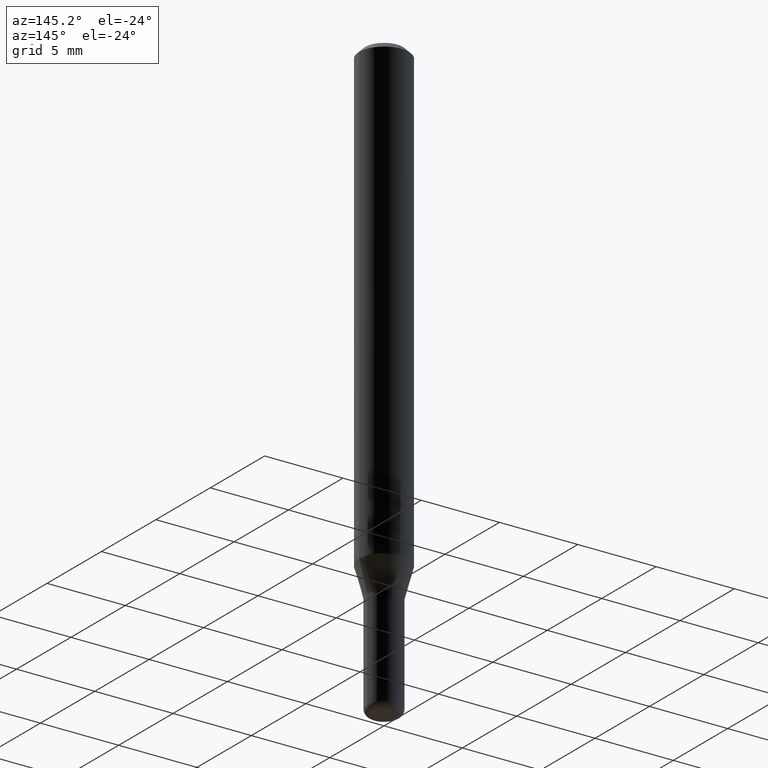
[diagram: clean part render]
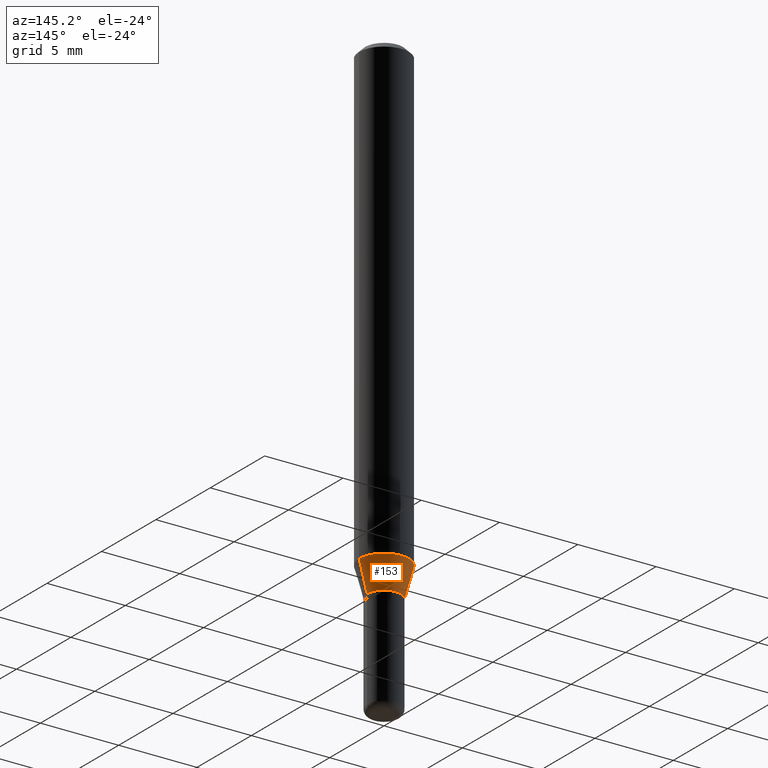
[diagram: same view with one face highlighted and labeled with its STEP entity id]
A machine part, auxiliary view. The second image highlights one B-rep face of the part: STEP entity #153.
In plain terms, the highlighted conical surface has half-angle 15 deg.
Its self-contained STEP definition (entity closure, byte-faithful):
#13 = CARTESIAN_POINT ( 'NONE',  ( 0.04249999999999997530, -4.608755367272951648E-15, -1.235000000000000098 ) ) ;
#17 = EDGE_LOOP ( 'NONE', ( #265, #426, #82, #414 ) ) ;
#18 = EDGE_CURVE ( 'NONE', #262, #90, #392, .T. ) ;
#26 = VERTEX_POINT ( 'NONE', #13 ) ;
#34 = DIRECTION ( 'NONE',  ( 0.2588190451025209060, 1.565188264969625123E-15, 0.9659258262890682012 ) ) ;
#40 = CIRCLE ( 'NONE', #452, 0.04249999999999997530 ) ;
#82 = ORIENTED_EDGE ( 'NONE', *, *, #18, .F. ) ;
#84 = DIRECTION ( 'NONE',  ( -0.2588190451025209060, 5.211531920934547097E-15, 0.9659258262890682012 ) ) ;
#90 = VERTEX_POINT ( 'NONE', #504 ) ;
#93 = DIRECTION ( 'NONE',  ( -2.445468806185136597E-29, 3.491481338843145583E-15, 1.000000000000000000 ) ) ;
#100 = DIRECTION ( 'NONE',  ( -2.445468806185136597E-29, 3.491481338843145583E-15, 1.000000000000000000 ) ) ;
#130 = CARTESIAN_POINT ( 'NONE',  ( 0.04249999999999997530, -4.608755367272951648E-15, -1.235000000000000098 ) ) ;
#153 = ADVANCED_FACE ( 'NONE', ( #468 ), #361, .T. ) ;
#173 = DIRECTION ( 'NONE',  ( 1.000000000000000000, -6.982962677686269077E-15, 0.000000000000000000 ) ) ;
#202 = CARTESIAN_POINT ( 'NONE',  ( -0.04249999999999997530, -4.009998790773243334E-15, -1.235000000000000098 ) ) ;
#216 = DIRECTION ( 'NONE',  ( 1.000000000000000000, -6.982962677686262766E-15, 0.000000000000000000 ) ) ;
#232 = DIRECTION ( 'NONE',  ( -2.445468806185136597E-29, 3.491481338843145583E-15, 1.000000000000000000 ) ) ;
#236 = EDGE_CURVE ( 'NONE', #373, #90, #362, .T. ) ;
#262 = VERTEX_POINT ( 'NONE', #295 ) ;
#265 = ORIENTED_EDGE ( 'NONE', *, *, #300, .T. ) ;
#291 = CARTESIAN_POINT ( 'NONE',  ( 2.837621698978489098E-29, -4.051371738466460595E-15, -1.160358983848622572 ) ) ;
#293 = VECTOR ( 'NONE', #84, 39.37007874015748143 ) ;
#295 = CARTESIAN_POINT ( 'NONE',  ( 0.06250000000000000000, -4.487806905821851475E-15, -1.160358983848622572 ) ) ;
#300 = EDGE_CURVE ( 'NONE', #26, #373, #40, .T. ) ;
#308 = VECTOR ( 'NONE', #34, 39.37007874015748143 ) ;
#336 = LINE ( 'NONE', #130, #308 ) ;
#347 = CARTESIAN_POINT ( 'NONE',  ( 3.020153975638643988E-29, -4.311979453471284998E-15, -1.235000000000000098 ) ) ;
#354 = AXIS2_PLACEMENT_3D ( 'NONE', #291, #93, #216 ) ;
#361 = CONICAL_SURFACE ( 'NONE', #408, 0.04249999999999997530, 0.2617993877991495744 ) ;
#362 = LINE ( 'NONE', #202, #293 ) ;
#373 = VERTEX_POINT ( 'NONE', #405 ) ;
#387 = DIRECTION ( 'NONE',  ( 1.000000000000000000, -6.982962677686269077E-15, 0.000000000000000000 ) ) ;
#392 = CIRCLE ( 'NONE', #354, 0.06250000000000000000 ) ;
#405 = CARTESIAN_POINT ( 'NONE',  ( -0.04249999999999997530, -3.808640659694820656E-15, -1.235000000000000098 ) ) ;
#407 = EDGE_CURVE ( 'NONE', #26, #262, #336, .T. ) ;
#408 = AXIS2_PLACEMENT_3D ( 'NONE', #508, #232, #387 ) ;
#414 = ORIENTED_EDGE ( 'NONE', *, *, #407, .F. ) ;
#426 = ORIENTED_EDGE ( 'NONE', *, *, #236, .T. ) ;
#452 = AXIS2_PLACEMENT_3D ( 'NONE', #347, #100, #173 ) ;
#468 = FACE_OUTER_BOUND ( 'NONE', #17, .T. ) ;
#504 = CARTESIAN_POINT ( 'NONE',  ( -0.06250000000000000000, -3.607282528616397979E-15, -1.160358983848622572 ) ) ;
#508 = CARTESIAN_POINT ( 'NONE',  ( 3.020153975638643988E-29, -4.311979453471284998E-15, -1.235000000000000098 ) ) ;